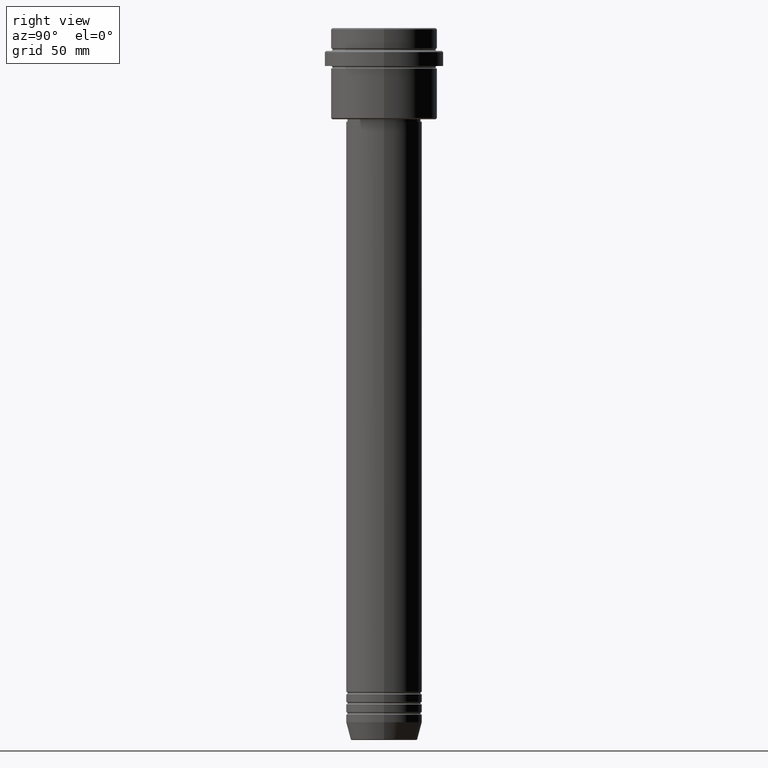
[diagram: clean part render]
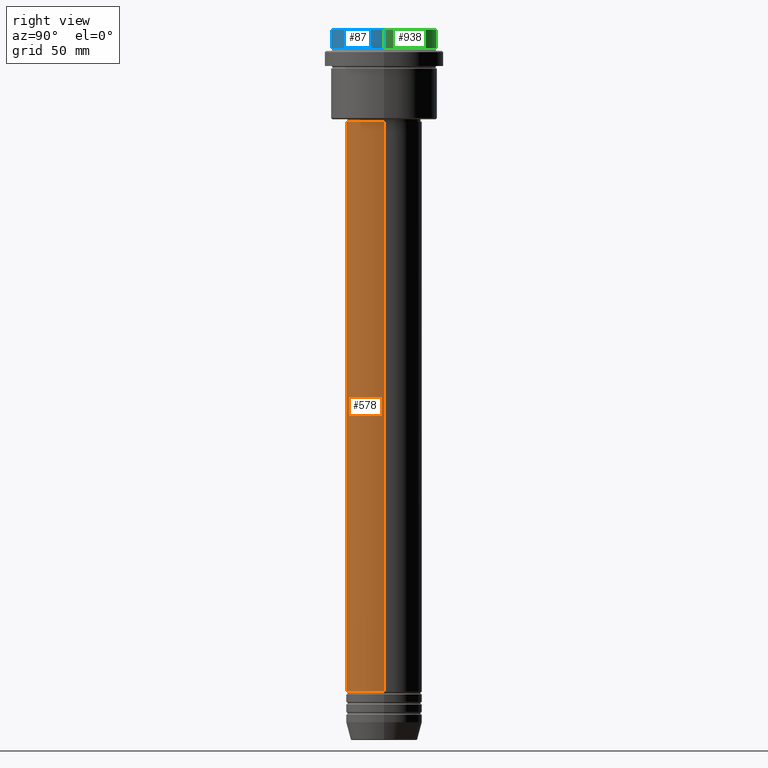
[diagram: same view with three faces highlighted in distinct colors, each labeled with its STEP entity id]
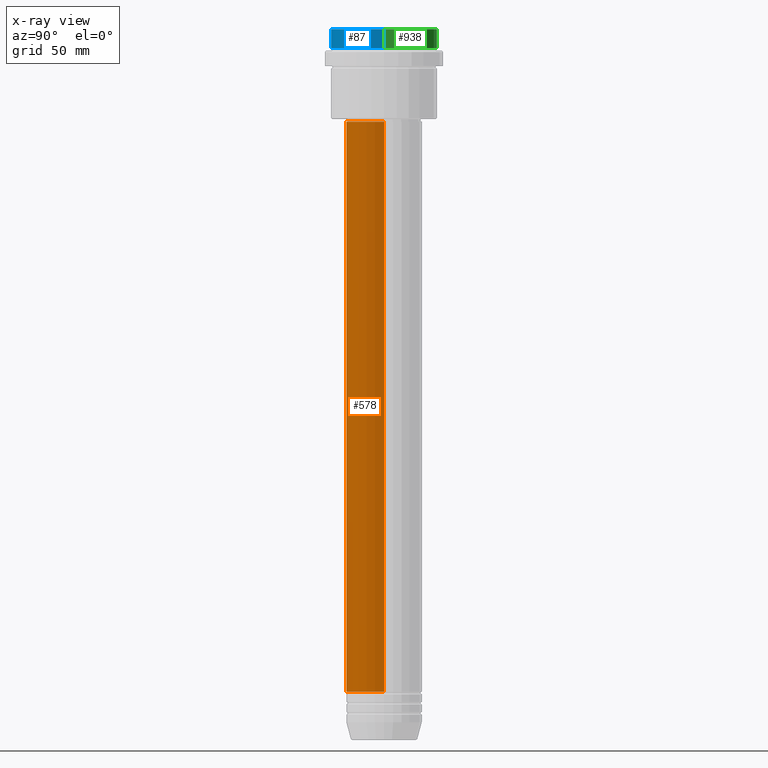
[diagram: x-ray of the same camera — body ghosted, the three highlighted faces saturated]
A machine part, right view with three faces highlighted in distinct colors.
The next image is the same camera in x-ray (body ghosted, the three faces saturated) — at least one of them is partly hidden behind the body in this view.
Their STEP definitions:

[orange] entity #578 — the highlighted cylindrical surface (partial cylindrical patch) has radius 15 mm, axis along (-0, -0, 1).
#42 = CARTESIAN_POINT ( 'NONE',  ( 0.000000000000000000, 0.000000000000000000, 0.000000000000000000 ) ) ;
#47 = DIRECTION ( 'NONE',  ( -0.000000000000000000, -0.000000000000000000, 1.000000000000000000 ) ) ;
#51 = DIRECTION ( 'NONE',  ( -0.000000000000000000, -0.000000000000000000, 1.000000000000000000 ) ) ;
#86 = VERTEX_POINT ( 'NONE', #430 ) ;
#114 = VECTOR ( 'NONE', #1054, 1000.000000000000000 ) ;
#154 = CIRCLE ( 'NONE', #312, 15.00000000000000000 ) ;
#156 = CIRCLE ( 'NONE', #735, 15.00000000000000000 ) ;
#212 = EDGE_CURVE ( 'NONE', #558, #86, #968, .T. ) ;
#219 = AXIS2_PLACEMENT_3D ( 'NONE', #42, #51, #695 ) ;
#312 = AXIS2_PLACEMENT_3D ( 'NONE', #1033, #47, #492 ) ;
#372 = CARTESIAN_POINT ( 'NONE',  ( -15.00000000000000000, 1.836970198721029589E-15, -37.00000000000008527 ) ) ;
#386 = VERTEX_POINT ( 'NONE', #987 ) ;
#414 = CARTESIAN_POINT ( 'NONE',  ( -15.00000000000000000, 1.836970198721029589E-15, 0.000000000000000000 ) ) ;
#430 = CARTESIAN_POINT ( 'NONE',  ( 15.00000000000000000, 0.000000000000000000, -37.00000000000008527 ) ) ;
#469 = VECTOR ( 'NONE', #861, 1000.000000000000000 ) ;
#477 = DIRECTION ( 'NONE',  ( -0.000000000000000000, -0.000000000000000000, 1.000000000000000000 ) ) ;
#492 = DIRECTION ( 'NONE',  ( 1.000000000000000000, 0.000000000000000000, 0.000000000000000000 ) ) ;
#511 = CARTESIAN_POINT ( 'NONE',  ( 15.00000000000000000, 0.000000000000000000, -261.9999999999998863 ) ) ;
#558 = VERTEX_POINT ( 'NONE', #511 ) ;
#578 = ADVANCED_FACE ( 'NONE', ( #1036 ), #1250, .T. ) ;
#613 = LINE ( 'NONE', #414, #114 ) ;
#638 = ORIENTED_EDGE ( 'NONE', *, *, #212, .T. ) ;
#646 = CARTESIAN_POINT ( 'NONE',  ( 15.00000000000000000, 0.000000000000000000, 0.000000000000000000 ) ) ;
#695 = DIRECTION ( 'NONE',  ( 1.000000000000000000, 0.000000000000000000, 0.000000000000000000 ) ) ;
#735 = AXIS2_PLACEMENT_3D ( 'NONE', #1043, #477, #1148 ) ;
#744 = EDGE_CURVE ( 'NONE', #386, #558, #154, .T. ) ;
#843 = ORIENTED_EDGE ( 'NONE', *, *, #1150, .F. ) ;
#861 = DIRECTION ( 'NONE',  ( -0.000000000000000000, -0.000000000000000000, 1.000000000000000000 ) ) ;
#907 = EDGE_CURVE ( 'NONE', #913, #86, #156, .T. ) ;
#913 = VERTEX_POINT ( 'NONE', #372 ) ;
#968 = LINE ( 'NONE', #646, #469 ) ;
#987 = CARTESIAN_POINT ( 'NONE',  ( -15.00000000000000000, 1.836970198721029589E-15, -261.9999999999998863 ) ) ;
#991 = ORIENTED_EDGE ( 'NONE', *, *, #744, .T. ) ;
#1033 = CARTESIAN_POINT ( 'NONE',  ( 0.000000000000000000, 0.000000000000000000, -261.9999999999998863 ) ) ;
#1036 = FACE_OUTER_BOUND ( 'NONE', #1062, .T. ) ;
#1043 = CARTESIAN_POINT ( 'NONE',  ( 0.000000000000000000, 0.000000000000000000, -37.00000000000008527 ) ) ;
#1054 = DIRECTION ( 'NONE',  ( -0.000000000000000000, -0.000000000000000000, 1.000000000000000000 ) ) ;
#1062 = EDGE_LOOP ( 'NONE', ( #843, #991, #638, #1255 ) ) ;
#1148 = DIRECTION ( 'NONE',  ( 1.000000000000000000, 0.000000000000000000, 0.000000000000000000 ) ) ;
#1150 = EDGE_CURVE ( 'NONE', #386, #913, #613, .T. ) ;
#1250 = CYLINDRICAL_SURFACE ( 'NONE', #219, 15.00000000000000000 ) ;
#1255 = ORIENTED_EDGE ( 'NONE', *, *, #907, .F. ) ;

[blue] entity #87 — the highlighted cylindrical surface (partial cylindrical patch) has radius 21 mm, axis along (-0, -0, 1).
#1 = ORIENTED_EDGE ( 'NONE', *, *, #77, .T. ) ;
#46 = EDGE_CURVE ( 'NONE', #595, #1294, #1254, .T. ) ;
#77 = EDGE_CURVE ( 'NONE', #490, #1018, #307, .T. ) ;
#87 = ADVANCED_FACE ( 'NONE', ( #526 ), #415, .T. ) ;
#217 = CARTESIAN_POINT ( 'NONE',  ( 21.00000000000000000, 0.000000000000000000, 0.000000000000000000 ) ) ;
#246 = CARTESIAN_POINT ( 'NONE',  ( -21.00000000000000000, 2.571758278209441661E-15, -7.999999999999998224 ) ) ;
#257 = EDGE_CURVE ( 'NONE', #595, #1018, #878, .T. ) ;
#307 = CIRCLE ( 'NONE', #1322, 21.00000000000000000 ) ;
#327 = AXIS2_PLACEMENT_3D ( 'NONE', #658, #1095, #845 ) ;
#415 = CYLINDRICAL_SURFACE ( 'NONE', #581, 21.00000000000000000 ) ;
#447 = DIRECTION ( 'NONE',  ( 1.000000000000000000, 0.000000000000000000, 0.000000000000000000 ) ) ;
#482 = VECTOR ( 'NONE', #1193, 1000.000000000000000 ) ;
#490 = VERTEX_POINT ( 'NONE', #1206 ) ;
#526 = FACE_OUTER_BOUND ( 'NONE', #1181, .T. ) ;
#548 = CARTESIAN_POINT ( 'NONE',  ( -21.00000000000000000, 2.571758278209441661E-15, 0.000000000000000000 ) ) ;
#569 = ORIENTED_EDGE ( 'NONE', *, *, #46, .T. ) ;
#581 = AXIS2_PLACEMENT_3D ( 'NONE', #1180, #1292, #747 ) ;
#592 = CARTESIAN_POINT ( 'NONE',  ( -21.00000000000000000, 2.571758278209441661E-15, -0.4999999999999553690 ) ) ;
#595 = VERTEX_POINT ( 'NONE', #246 ) ;
#658 = CARTESIAN_POINT ( 'NONE',  ( 0.000000000000000000, 0.000000000000000000, -7.999999999999998224 ) ) ;
#666 = DIRECTION ( 'NONE',  ( 0.000000000000000000, 0.000000000000000000, -1.000000000000000000 ) ) ;
#747 = DIRECTION ( 'NONE',  ( 1.000000000000000000, 0.000000000000000000, 0.000000000000000000 ) ) ;
#749 = CARTESIAN_POINT ( 'NONE',  ( 0.000000000000000000, 0.000000000000000000, -0.4999999999999553690 ) ) ;
#833 = ORIENTED_EDGE ( 'NONE', *, *, #257, .F. ) ;
#845 = DIRECTION ( 'NONE',  ( 1.000000000000000000, 0.000000000000000000, 0.000000000000000000 ) ) ;
#878 = LINE ( 'NONE', #548, #983 ) ;
#983 = VECTOR ( 'NONE', #988, 1000.000000000000000 ) ;
#988 = DIRECTION ( 'NONE',  ( -0.000000000000000000, -0.000000000000000000, 1.000000000000000000 ) ) ;
#1018 = VERTEX_POINT ( 'NONE', #592 ) ;
#1081 = CARTESIAN_POINT ( 'NONE',  ( 21.00000000000000000, 0.000000000000000000, -7.999999999999998224 ) ) ;
#1090 = LINE ( 'NONE', #217, #482 ) ;
#1095 = DIRECTION ( 'NONE',  ( -0.000000000000000000, -0.000000000000000000, 1.000000000000000000 ) ) ;
#1180 = CARTESIAN_POINT ( 'NONE',  ( 0.000000000000000000, 0.000000000000000000, 0.000000000000000000 ) ) ;
#1181 = EDGE_LOOP ( 'NONE', ( #833, #569, #1387, #1 ) ) ;
#1193 = DIRECTION ( 'NONE',  ( -0.000000000000000000, -0.000000000000000000, 1.000000000000000000 ) ) ;
#1206 = CARTESIAN_POINT ( 'NONE',  ( 21.00000000000000000, 0.000000000000000000, -0.4999999999999553690 ) ) ;
#1247 = EDGE_CURVE ( 'NONE', #1294, #490, #1090, .T. ) ;
#1254 = CIRCLE ( 'NONE', #327, 21.00000000000000000 ) ;
#1292 = DIRECTION ( 'NONE',  ( -0.000000000000000000, -0.000000000000000000, 1.000000000000000000 ) ) ;
#1294 = VERTEX_POINT ( 'NONE', #1081 ) ;
#1322 = AXIS2_PLACEMENT_3D ( 'NONE', #749, #666, #447 ) ;
#1387 = ORIENTED_EDGE ( 'NONE', *, *, #1247, .T. ) ;

[green] entity #938 — the highlighted cylindrical surface (partial cylindrical patch) has radius 21 mm, axis along (-0, -0, 1).
#81 = CIRCLE ( 'NONE', #547, 21.00000000000000000 ) ;
#132 = CARTESIAN_POINT ( 'NONE',  ( 0.000000000000000000, 0.000000000000000000, -0.4999999999999553690 ) ) ;
#153 = DIRECTION ( 'NONE',  ( 1.000000000000000000, 0.000000000000000000, 0.000000000000000000 ) ) ;
#155 = ORIENTED_EDGE ( 'NONE', *, *, #257, .T. ) ;
#159 = FACE_OUTER_BOUND ( 'NONE', #609, .T. ) ;
#217 = CARTESIAN_POINT ( 'NONE',  ( 21.00000000000000000, 0.000000000000000000, 0.000000000000000000 ) ) ;
#246 = CARTESIAN_POINT ( 'NONE',  ( -21.00000000000000000, 2.571758278209441661E-15, -7.999999999999998224 ) ) ;
#257 = EDGE_CURVE ( 'NONE', #595, #1018, #878, .T. ) ;
#350 = DIRECTION ( 'NONE',  ( -0.000000000000000000, -0.000000000000000000, 1.000000000000000000 ) ) ;
#482 = VECTOR ( 'NONE', #1193, 1000.000000000000000 ) ;
#490 = VERTEX_POINT ( 'NONE', #1206 ) ;
#547 = AXIS2_PLACEMENT_3D ( 'NONE', #132, #1365, #899 ) ;
#548 = CARTESIAN_POINT ( 'NONE',  ( -21.00000000000000000, 2.571758278209441661E-15, 0.000000000000000000 ) ) ;
#592 = CARTESIAN_POINT ( 'NONE',  ( -21.00000000000000000, 2.571758278209441661E-15, -0.4999999999999553690 ) ) ;
#595 = VERTEX_POINT ( 'NONE', #246 ) ;
#603 = CARTESIAN_POINT ( 'NONE',  ( 0.000000000000000000, 0.000000000000000000, -7.999999999999998224 ) ) ;
#609 = EDGE_LOOP ( 'NONE', ( #889, #155, #668, #1296 ) ) ;
#668 = ORIENTED_EDGE ( 'NONE', *, *, #917, .T. ) ;
#878 = LINE ( 'NONE', #548, #983 ) ;
#889 = ORIENTED_EDGE ( 'NONE', *, *, #893, .T. ) ;
#893 = EDGE_CURVE ( 'NONE', #1294, #595, #1233, .T. ) ;
#899 = DIRECTION ( 'NONE',  ( 1.000000000000000000, 0.000000000000000000, 0.000000000000000000 ) ) ;
#917 = EDGE_CURVE ( 'NONE', #1018, #490, #81, .T. ) ;
#938 = ADVANCED_FACE ( 'NONE', ( #159 ), #1346, .T. ) ;
#983 = VECTOR ( 'NONE', #988, 1000.000000000000000 ) ;
#988 = DIRECTION ( 'NONE',  ( -0.000000000000000000, -0.000000000000000000, 1.000000000000000000 ) ) ;
#1018 = VERTEX_POINT ( 'NONE', #592 ) ;
#1081 = CARTESIAN_POINT ( 'NONE',  ( 21.00000000000000000, 0.000000000000000000, -7.999999999999998224 ) ) ;
#1090 = LINE ( 'NONE', #217, #482 ) ;
#1193 = DIRECTION ( 'NONE',  ( -0.000000000000000000, -0.000000000000000000, 1.000000000000000000 ) ) ;
#1206 = CARTESIAN_POINT ( 'NONE',  ( 21.00000000000000000, 0.000000000000000000, -0.4999999999999553690 ) ) ;
#1207 = AXIS2_PLACEMENT_3D ( 'NONE', #603, #1228, #153 ) ;
#1228 = DIRECTION ( 'NONE',  ( -0.000000000000000000, -0.000000000000000000, 1.000000000000000000 ) ) ;
#1233 = CIRCLE ( 'NONE', #1207, 21.00000000000000000 ) ;
#1237 = CARTESIAN_POINT ( 'NONE',  ( 0.000000000000000000, 0.000000000000000000, 0.000000000000000000 ) ) ;
#1247 = EDGE_CURVE ( 'NONE', #1294, #490, #1090, .T. ) ;
#1286 = AXIS2_PLACEMENT_3D ( 'NONE', #1237, #350, #1339 ) ;
#1294 = VERTEX_POINT ( 'NONE', #1081 ) ;
#1296 = ORIENTED_EDGE ( 'NONE', *, *, #1247, .F. ) ;
#1339 = DIRECTION ( 'NONE',  ( 1.000000000000000000, 0.000000000000000000, 0.000000000000000000 ) ) ;
#1346 = CYLINDRICAL_SURFACE ( 'NONE', #1286, 21.00000000000000000 ) ;
#1365 = DIRECTION ( 'NONE',  ( 0.000000000000000000, 0.000000000000000000, -1.000000000000000000 ) ) ;